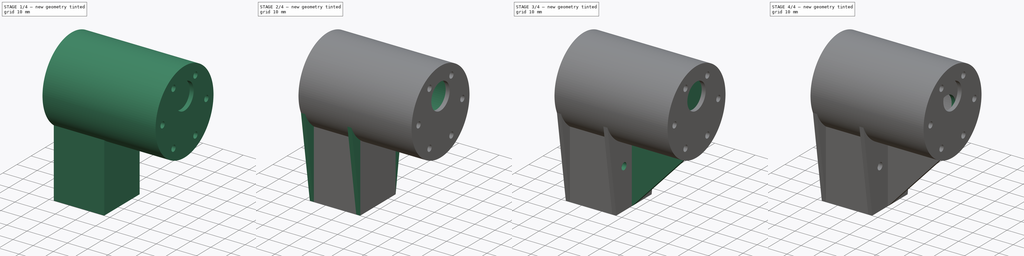
[diagram: build sequence overview — one tinted view per stage of 4, left to right]
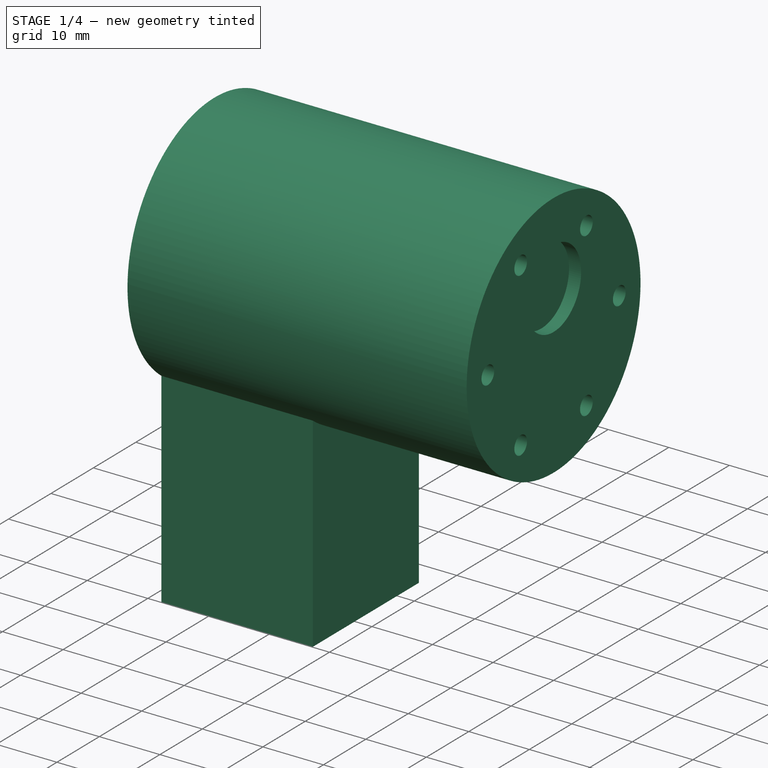
[diagram: stage 1 of 4 — iso view after this stage's code; geometry added in this stage tinted green]
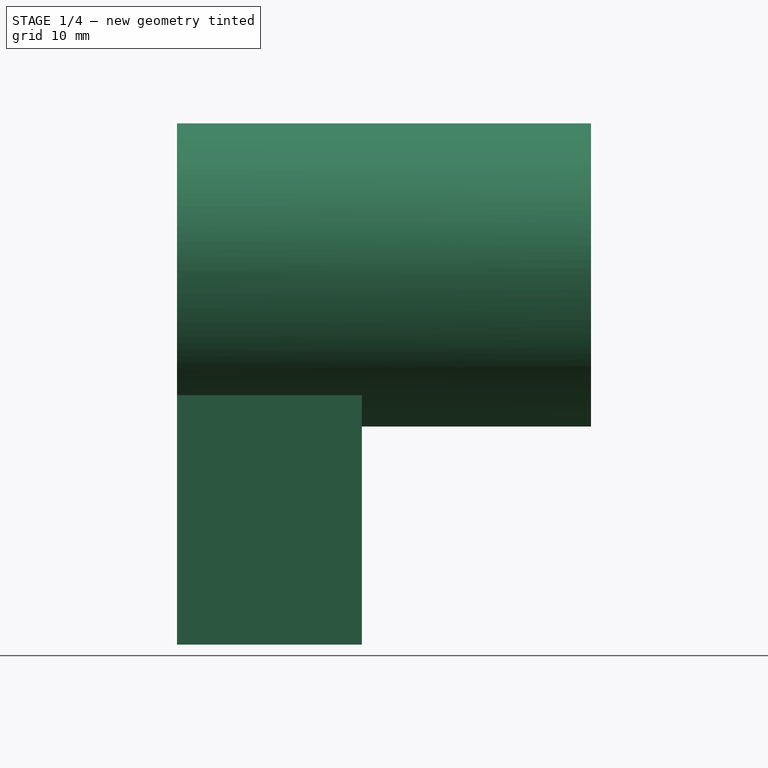
[diagram: stage 1 of 4 — front view after this stage's code; geometry added in this stage tinted green]
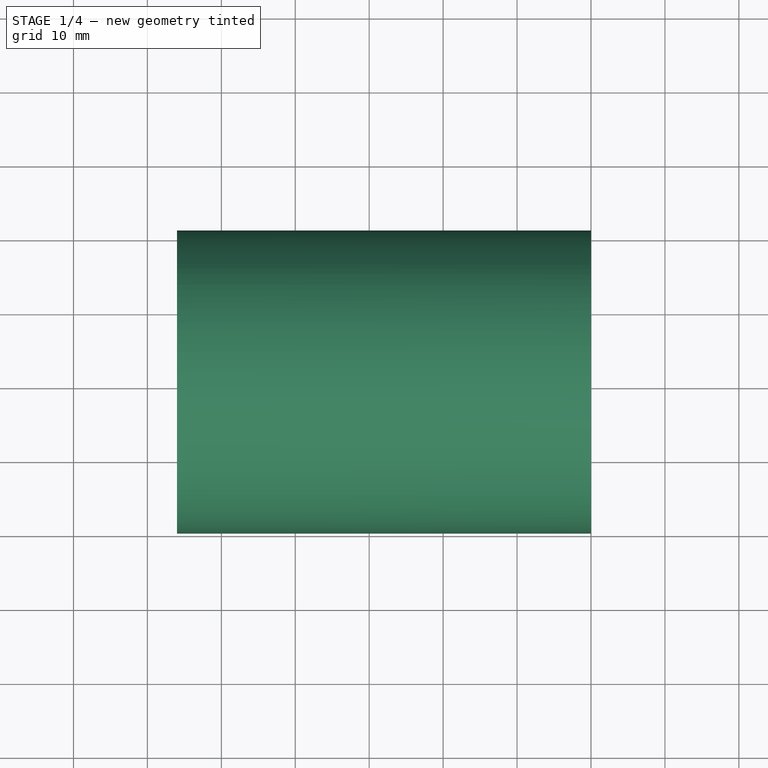
[diagram: stage 1 of 4 — top view after this stage's code; geometry added in this stage tinted green]
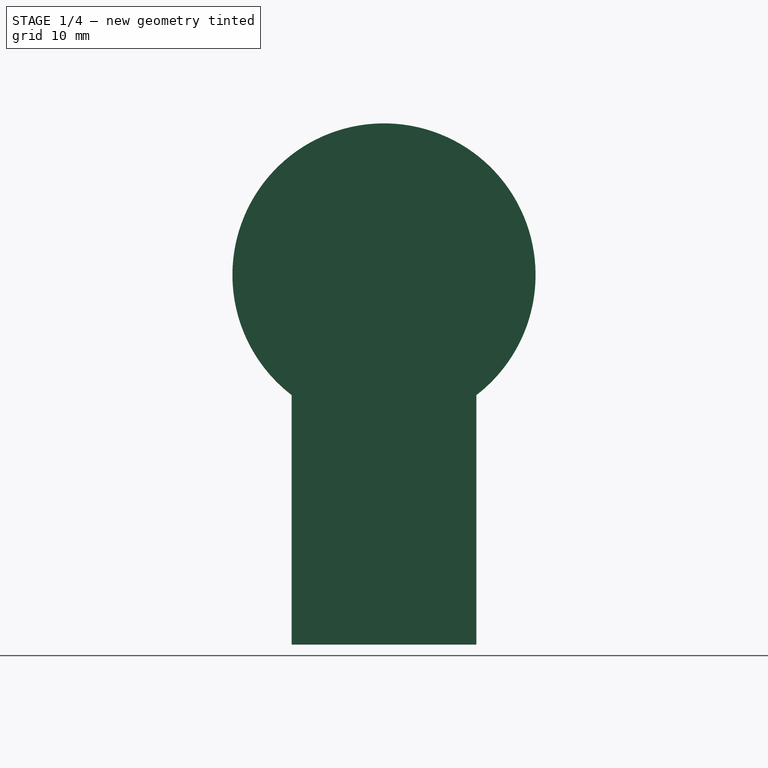
[diagram: stage 1 of 4 — right view after this stage's code; geometry added in this stage tinted green]
FCSTD DOCUMENT  (FreeCAD 0.19R24367 (Git))
Label: MotorBracket
License: All rights reserved
LicenseURL: http://en.wikipedia.org/wiki/All_rights_reserved
objects: Sketcher::SketchObject×12, PartDesign::Pocket×7, PartDesign::Pad×5, PartDesign::Body×2, PartDesign::LinearPattern×1, PartDesign::CoordinateSystem×1, App::Part×1
note: 40 computed .brp shape members not serialized (recipe doc carries the construction recipe); baked Part::Feature solids carry a one-line shape summary decoded from their .brp

FEATURE [PartDesign::Body] Body001  label="Back"
  Group = -> [Sketch009,Pad005,Sketch010,Pocket004,Sketch011,Pocket005,Sketch012,Pocket006]
  Origin = -> Origin001
  Tip = -> Pocket006
FEATURE [Sketcher::SketchObject] Sketch016
  FullyConstrained = true
  MapMode = 5
  Placement = pos=(-46,0,-1.5e-14) rot=(0.57735,0.57735,-0.57735;4.18879rad)
  sketch-geometry (4):
    g0: LineSegment StartX=20 StartY=0 StartZ=0 EndX=-20 EndY=0 EndZ=0
    g1: LineSegment StartX=12.5 StartY=50 StartZ=0 EndX=-12.5 EndY=50 EndZ=0
    g2: LineSegment StartX=20 StartY=0 StartZ=0 EndX=12.5 EndY=50 EndZ=0
    g3: LineSegment StartX=-12.5 StartY=50 StartZ=0 EndX=-20 EndY=0 EndZ=0
  constraints (10):
    c: PointOnObject(g0,g-1)
    c: Symmetric(g0,g0,g-2)
    c: Symmetric(g1,g1,g-2)
    c: Distance(g0) = 40
    c: Distance(g1) = 25
    c: DistanceY(g1,g-1) = -50
    c: Coincident(g2,g0)
    c: Coincident(g2,g1)
    c: Coincident(g3,g1)
    c: Coincident(g3,g0)
FEATURE [Sketcher::SketchObject] Sketch018
  FullyConstrained = true
  MapMode = 5
  Placement = pos=(0,0,0) rot=(0.57735,0.57735,0.57735;2.0944rad)
  Support = -> [YZ_Plane002]
  sketch-geometry (1):
    g0: Circle CenterX=0 CenterY=0 CenterZ=0 NormalX=0 NormalY=0 NormalZ=1 AngleXU=0 Radius=20.5
  constraints (2):
    c: Coincident(g0,g-1)
    c: Diameter(g0) = 41
FEATURE [PartDesign::Pad] Pad006
  Direction = (1,1,1)
  Length = 10
  Length2 = 46
  Placement = pos=(0,0,0) rot=(0.57735,0.57735,0.57735;2.0944rad)
  Profile = -> Sketch018
  Type = 4
FEATURE [Sketcher::SketchObject] Sketch017
  FullyConstrained = true
  MapMode = 5
  Placement = pos=(-46,1.01e-14,-1.01e-14) rot=(0.57735,0.57735,-0.57735;4.18879rad)
  Support = -> [Pad006]
  sketch-geometry (1):
    g0: Circle CenterX=0 CenterY=0 CenterZ=0 NormalX=0 NormalY=0 NormalZ=1 AngleXU=0 Radius=18.75
  constraints (2):
    c: Coincident(g0,g-1)
    c: Diameter(g0) = 37.5
FEATURE [Sketcher::SketchObject] Sketch019
  FullyConstrained = true
  MapMode = 5
  Placement = pos=(10,-4e-15,3e-15) rot=(0.57735,0.57735,0.57735;2.0944rad)
  sketch-geometry (13):
    g0: LineSegment StartX=-15.5 StartY=0 StartZ=0 EndX=15.5 EndY=0 EndZ=0
    g1: LineSegment StartX=0 StartY=0 StartZ=0 EndX=0 EndY=7 EndZ=0
    g2: LineSegment StartX=-7.75 StartY=-13.4234 StartZ=0 EndX=7.75 EndY=-13.4234 EndZ=0
    g3: LineSegment StartX=-7.75 StartY=-13.4234 StartZ=0 EndX=0 EndY=0 EndZ=0
    g4: LineSegment StartX=-7.75 StartY=13.4234 StartZ=0 EndX=7.75 EndY=13.4234 EndZ=0
    g5: LineSegment StartX=-7.75 StartY=13.4234 StartZ=0 EndX=0 EndY=0 EndZ=0
    g6: Circle CenterX=0 CenterY=7 CenterZ=0 NormalX=0 NormalY=0 NormalZ=1 AngleXU=0 Radius=6.5
    g7: Circle CenterX=7.75 CenterY=-13.4234 CenterZ=0 NormalX=0 NormalY=0 NormalZ=1 AngleXU=0 Radius=1.5
    g8: Circle CenterX=15.5 CenterY=0 CenterZ=0 NormalX=0 NormalY=0 NormalZ=1 AngleXU=0 Radius=1.5
    g9: Circle CenterX=-15.5 CenterY=0 CenterZ=0 NormalX=0 NormalY=0 NormalZ=1 AngleXU=0 Radius=1.5
    g10: Circle CenterX=-7.75 CenterY=-13.4234 CenterZ=0 NormalX=0 NormalY=0 NormalZ=1 AngleXU=0 Radius=1.5
    g11: Circle CenterX=7.75 CenterY=13.4234 CenterZ=0 NormalX=0 NormalY=0 NormalZ=1 AngleXU=0 Radius=1.5
    g12: Circle CenterX=-7.75 CenterY=13.4234 CenterZ=0 NormalX=0 NormalY=0 NormalZ=1 AngleXU=0 Radius=1.5
  constraints (30):
    c: PointOnObject(g0,g-1)
    c: Symmetric(g0,g0,g-2)
    c: Distance(g0) = 31
    c: Coincident(g1,g-1)
    c: PointOnObject(g1,g-2)
    c: Distance(g1) = 7
    c: Distance(g2) = 15.5
    c: Coincident(g3,g2)
    c: Coincident(g3,g-1)
    c: Distance(g3) = 15.5
    c: Distance(g4) = 15.5
    c: Coincident(g5,g4)
    c: Coincident(g5,g-1)
    c: Distance(g5) = 15.5
    c: Coincident(g6,g1)
    c: Diameter(g6) = 13
    c: Symmetric(g2,g2,g-2)
    c: Symmetric(g4,g4,g-2)
    c: Coincident(g7,g2)
    c: Diameter(g7) = 3
    c: Coincident(g8,g0)
    c: Coincident(g9,g0)
    c: Coincident(g10,g2)
    c: Coincident(g12,g4)
    c: Coincident(g11,g4)
    c: Diameter(g12) = 3
    c: Diameter(g11) = 3
    c: Diameter(g9) = 3
    c: Diameter(g8) = 3
    c: Diameter(g10) = 3
FEATURE [PartDesign::Pocket] Pocket007
  BaseFeature = -> Pad006
  Length = 2
  Length2 = 100
  Placement = pos=(0,0,0) rot=(0.57735,0.57735,0.57735;2.0944rad)
  Profile = -> Sketch019
  Type = 0
FEATURE [Sketcher::SketchObject] Sketch013
  ExternalGeometry = -> [Pocket007]
  FullyConstrained = true
  MapMode = 5
  Support = -> [XY_Plane002]
  sketch-geometry (4):
    g0: LineSegment StartX=-46 StartY=12.5 StartZ=0 EndX=-21 EndY=12.5 EndZ=0
    g1: LineSegment StartX=-21 StartY=12.5 StartZ=0 EndX=-21 EndY=-12.5 EndZ=0
    g2: LineSegment StartX=-21 StartY=-12.5 StartZ=0 EndX=-46 EndY=-12.5 EndZ=0
    g3: LineSegment StartX=-46 StartY=-12.5 StartZ=0 EndX=-46 EndY=12.5 EndZ=0
  constraints (11):
    c: Coincident(g0,g1)
    c: Coincident(g1,g2)
    c: Coincident(g2,g3)
    c: Coincident(g3,g0)
    c: Horizontal(g0)
    c: Horizontal(g2)
    c: Vertical(g3)
    c: Distance(g0) = 25
    c: Equal(g0,g1)
    c: Symmetric(g0,g1,g-1)
    c: DistanceX(g-3,g0) = 0
FEATURE [Sketcher::SketchObject] Sketch020
  FullyConstrained = true
  MapMode = 5
  Placement = pos=(-46,1e-14,-2.5e-14) rot=(0.57735,0.57735,-0.57735;4.18879rad)
  sketch-geometry (2):
    g0: Circle CenterX=-7 CenterY=30 CenterZ=0 NormalX=0 NormalY=0 NormalZ=1 AngleXU=0 Radius=1.75
    g1: Circle CenterX=7 CenterY=30 CenterZ=0 NormalX=0 NormalY=0 NormalZ=1 AngleXU=0 Radius=1.75
  constraints (5):
    c: Diameter(g0) = 3.5
    c: Diameter(g1) = 3.5
    c: Symmetric(g0,g1,g-2)
    c: DistanceX(g0,g-1) = 7
    c: DistanceY(g-1,g0) = 30
FEATURE [PartDesign::Pad] Pad009
  BaseFeature = -> Pocket007
  Direction = (1,1,1)
  Length = 50
  Length2 = 100
  Placement = pos=(0,0,0) rot=(0.57735,0.57735,0.57735;2.0944rad)
  Profile = -> Sketch013
  Reversed = true
  Type = 0
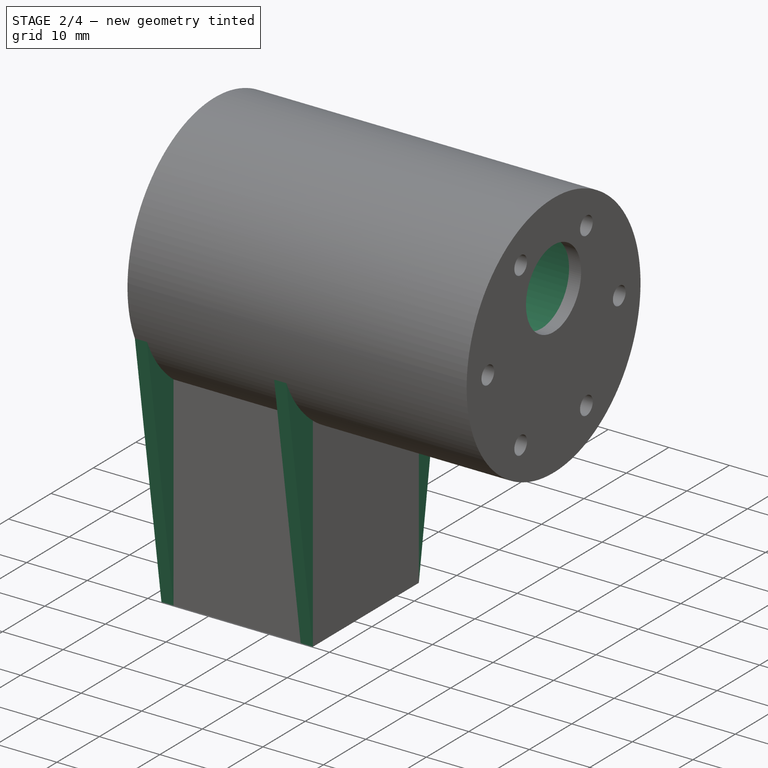
[diagram: stage 2 of 4 — iso view after this stage's code; geometry added in this stage tinted green]
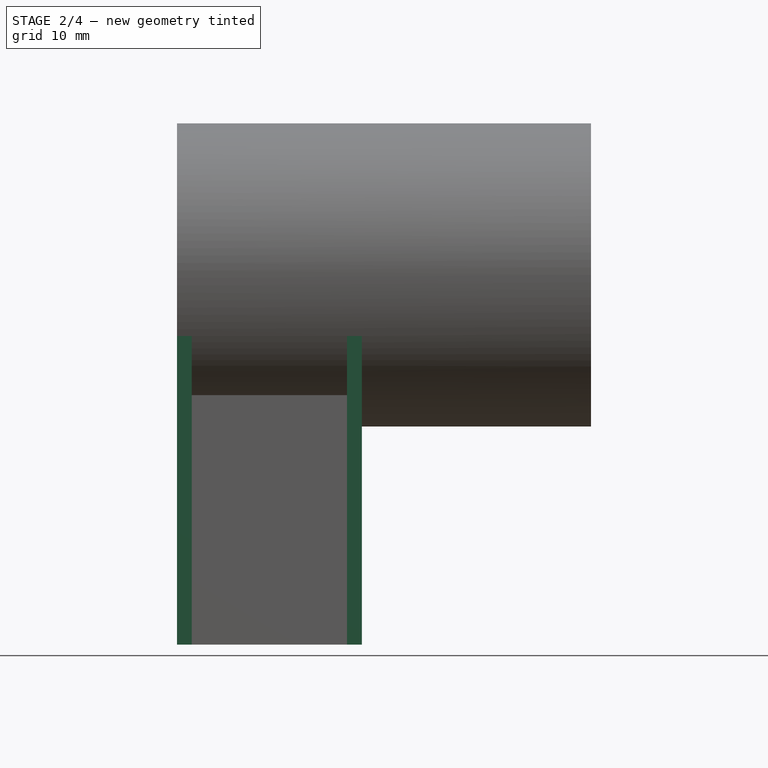
[diagram: stage 2 of 4 — front view after this stage's code; geometry added in this stage tinted green]
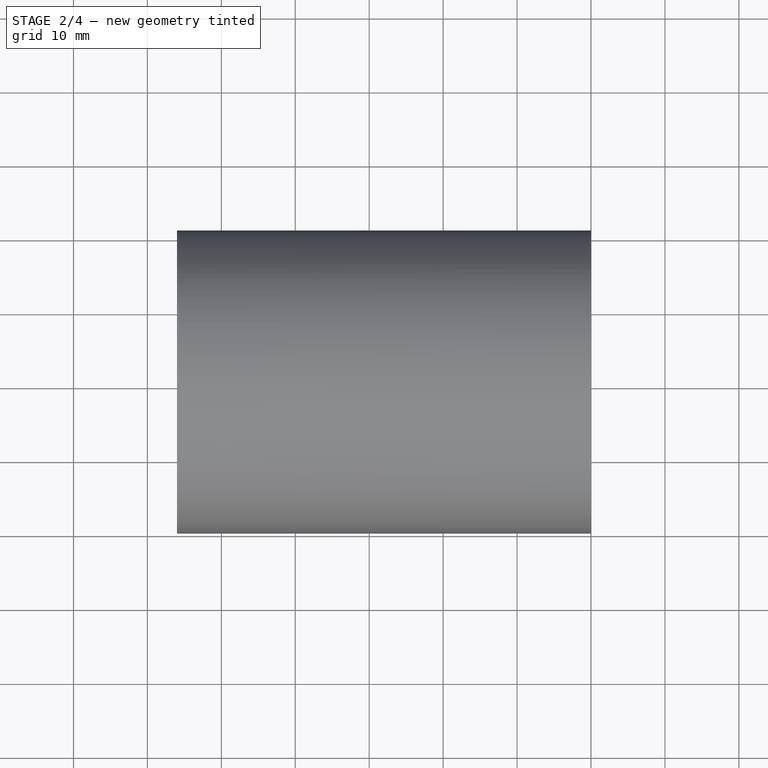
[diagram: stage 2 of 4 — top view after this stage's code; geometry added in this stage tinted green]
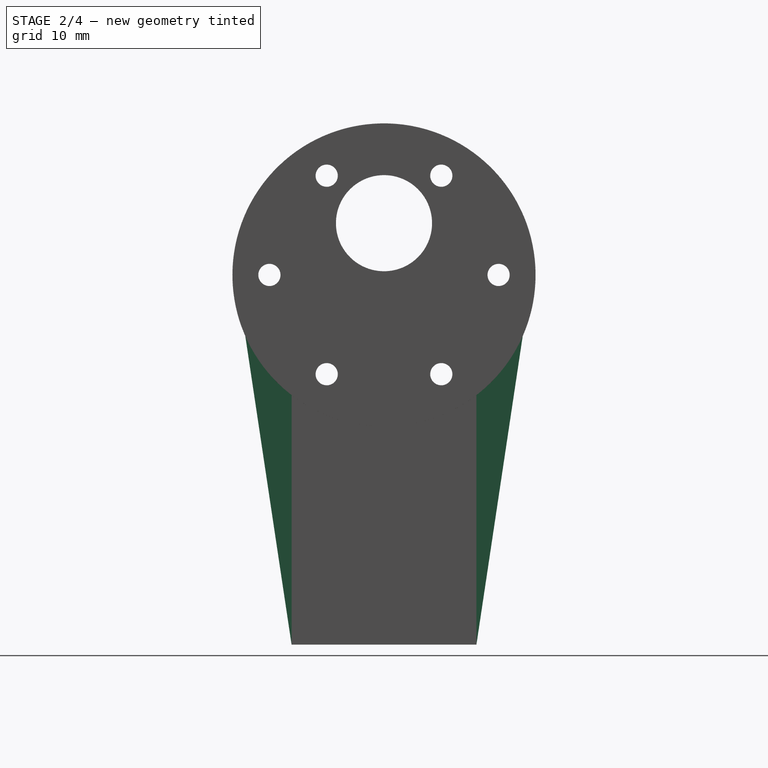
[diagram: stage 2 of 4 — right view after this stage's code; geometry added in this stage tinted green]
FEATURE [PartDesign::Pad] Pad008
  BaseFeature = -> Pad009
  Direction = (1,1,1)
  Length = 2
  Length2 = 100
  Placement = pos=(0,0,0) rot=(0.57735,0.57735,0.57735;2.0944rad)
  Profile = -> Sketch016
  Reversed = true
  Type = 0
FEATURE [PartDesign::LinearPattern] LinearPattern001
  BaseFeature = -> Pad008
  Direction = -> X_Axis002
  Length = 23
  Occurrences = 2
  Originals = -> [Pad008]
  Placement = pos=(0,0,0) rot=(0.57735,0.57735,0.57735;2.0944rad)
FEATURE [PartDesign::Pocket] Pocket008
  BaseFeature = -> LinearPattern001
  Length = 54
  Length2 = 100
  Placement = pos=(0,0,0) rot=(0.57735,0.57735,0.57735;2.0944rad)
  Profile = -> Sketch017
  Type = 0
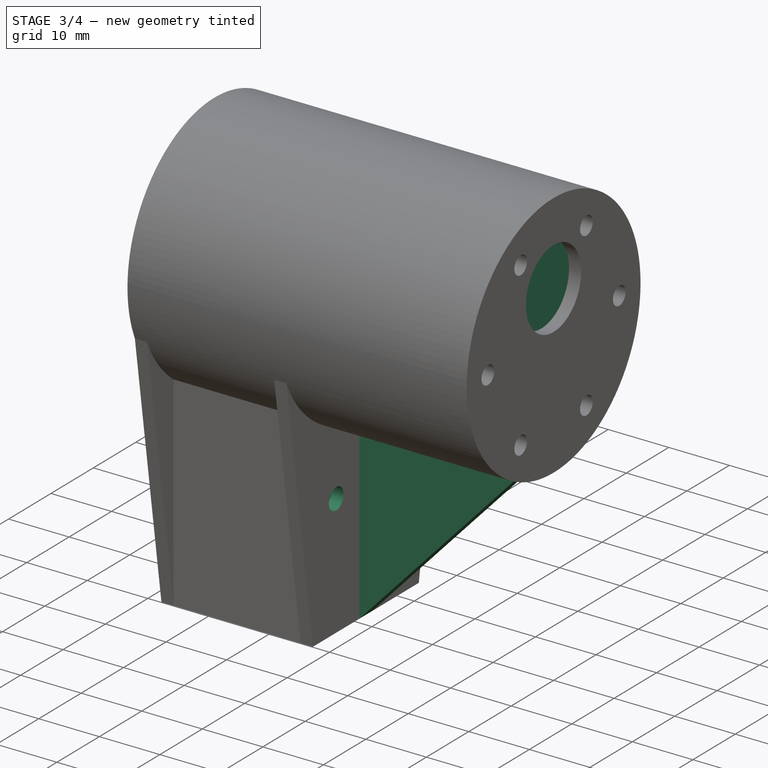
[diagram: stage 3 of 4 — iso view after this stage's code; geometry added in this stage tinted green]
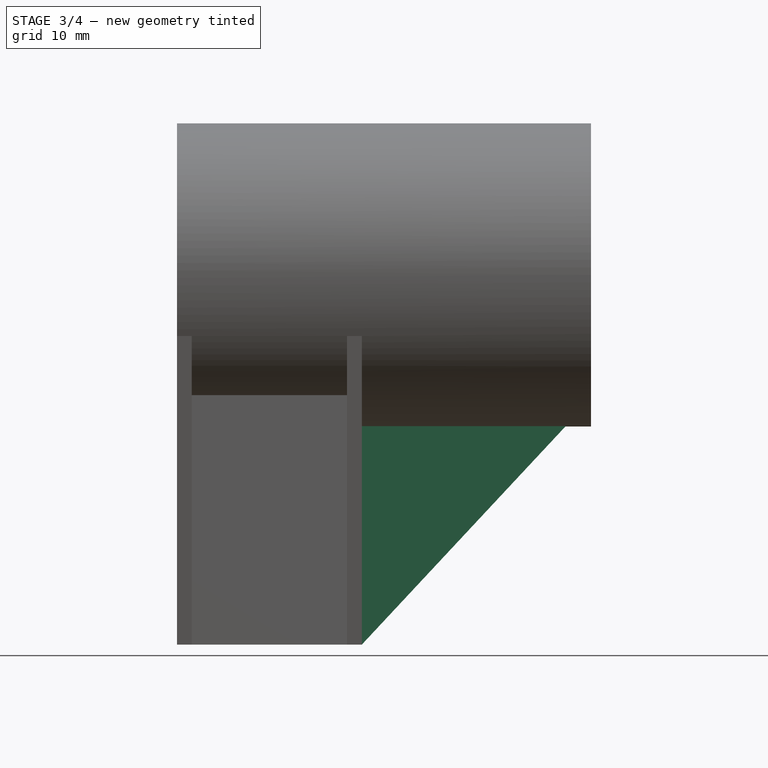
[diagram: stage 3 of 4 — front view after this stage's code; geometry added in this stage tinted green]
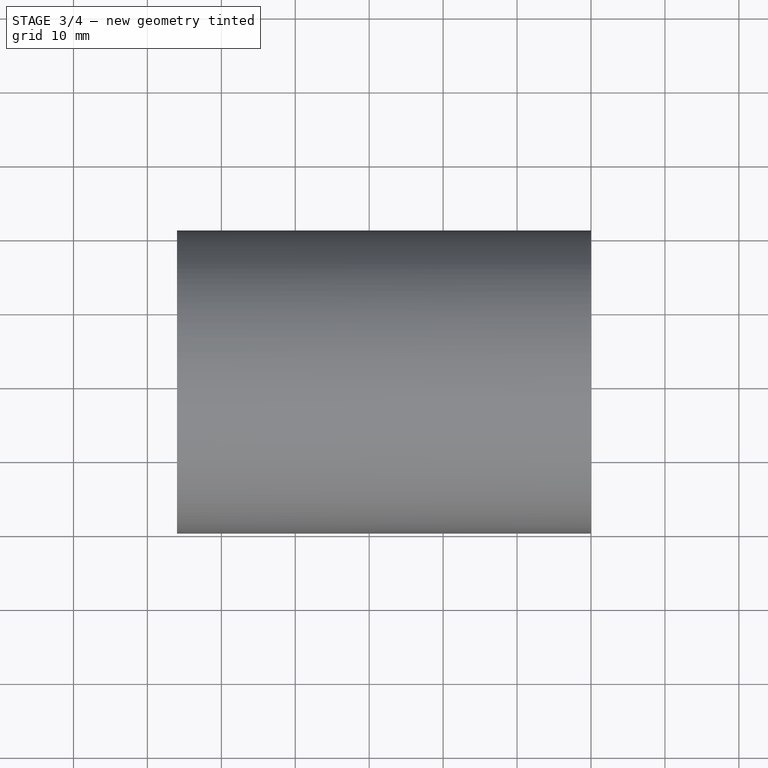
[diagram: stage 3 of 4 — top view after this stage's code; geometry added in this stage tinted green]
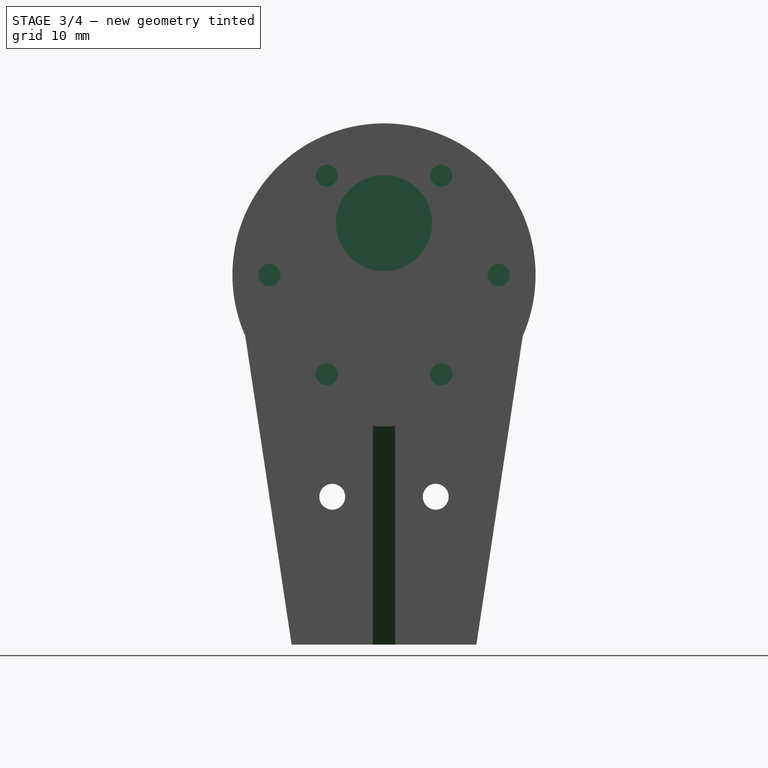
[diagram: stage 3 of 4 — right view after this stage's code; geometry added in this stage tinted green]
FEATURE [Sketcher::SketchObject] Sketch009
  FullyConstrained = true
  MapMode = 5
  Placement = pos=(0,0,0) rot=(0.57735,0.57735,0.57735;2.0944rad)
  Support = -> [YZ_Plane001]
  sketch-geometry (1):
    g0: Circle CenterX=0 CenterY=0 CenterZ=0 NormalX=0 NormalY=0 NormalZ=1 AngleXU=0 Radius=20
  constraints (2):
    c: Coincident(g0,g-1)
    c: Diameter(g0) = 40
FEATURE [PartDesign::Pad] Pad005
  Direction = (1,1,1)
  Length = 7
  Length2 = 100
  Placement = pos=(0,0,0) rot=(0.57735,0.57735,0.57735;2.0944rad)
  Profile = -> Sketch009
  Type = 0
FEATURE [PartDesign::Pocket] Pocket010
  BaseFeature = -> Pocket008
  Length = 5
  Length2 = 100
  Placement = pos=(0,0,0) rot=(0.57735,0.57735,0.57735;2.0944rad)
  Profile = -> Sketch020
  Refine = true
  Type = 1
FEATURE [Sketcher::SketchObject] Sketch021
  ExternalGeometry = -> [Pocket010]
  FullyConstrained = true
  MapMode = 5
  Placement = pos=(0,0,0) rot=(1,0,0;1.5708rad)
  Support = -> [XZ_Plane002]
  sketch-geometry (3):
    g0: LineSegment StartX=7 StartY=-20 StartZ=0 EndX=-21 EndY=-20 EndZ=0
    g1: LineSegment StartX=-21 StartY=-20 StartZ=0 EndX=-21 EndY=-50 EndZ=0
    g2: LineSegment StartX=-21 StartY=-50 StartZ=0 EndX=7 EndY=-20 EndZ=0
  constraints (8):
    c: Horizontal(g0)
    c: Coincident(g1,g0)
    c: Vertical(g1)
    c: Coincident(g2,g1)
    c: Coincident(g2,g0)
    c: Distance(g0) = 28
    c: Distance(g1) = 30
    c: Coincident(g1,g-3)
FEATURE [PartDesign::Pad] Pad010
  BaseFeature = -> Pocket010
  Direction = (1,1,1)
  Length = 3
  Length2 = 100
  Midplane = true
  Placement = pos=(0,0,0) rot=(0.57735,0.57735,0.57735;2.0944rad)
  Profile = -> Sketch021
  Type = 0
FEATURE [Sketcher::SketchObject] Sketch022
  ExternalGeometry = -> [Pad010]
  FullyConstrained = true
  MapMode = 5
  Placement = pos=(0,0,-50) rot=(0.707107,0.707107,0;3.14159rad)
  Support = -> [Pad010]
  sketch-geometry (4):
    g0: LineSegment StartX=-10.5 StartY=-23 StartZ=0 EndX=10.5 EndY=-23 EndZ=0
    g1: LineSegment StartX=10.5 StartY=-23 StartZ=0 EndX=10.5 EndY=-44 EndZ=0
    g2: LineSegment StartX=10.5 StartY=-44 StartZ=0 EndX=-10.5 EndY=-44 EndZ=0
    g3: LineSegment StartX=-10.5 StartY=-44 StartZ=0 EndX=-10.5 EndY=-23 EndZ=0
  constraints (11):
    c: Coincident(g0,g1)
    c: Coincident(g1,g2)
    c: Coincident(g2,g3)
    c: Coincident(g3,g0)
    c: Horizontal(g2)
    c: Vertical(g1)
    c: Vertical(g3)
    c: Symmetric(g0,g0,g-2)
    c: Equal(g0,g1)
    c: Distance(g0) = 21
    c: DistanceY(g0,g-3) = 2
FEATURE [PartDesign::Pocket] Pocket011
  BaseFeature = -> Pad010
  Length = 29
  Length2 = 100
  Placement = pos=(0,0,0) rot=(0.57735,0.57735,0.57735;2.0944rad)
  Profile = -> Sketch022
  Type = 0
FEATURE [PartDesign::Body] Body002  label="Body"
  Group = -> [Sketch018,Sketch019,Pad006,Sketch017,Pocket007,Sketch013,Pad009,Sketch016,Pad008,LinearPattern001,Pocket008,Sketch020,Pocket010,Sketch021,Pad010,Sketch022,Pocket011]
  Origin = -> Origin002
  Tip = -> Pocket011
FEATURE [PartDesign::CoordinateSystem] LCS_1
  AttacherType = Attacher::AttachEngine3D
  MapMode = 5
  Placement = pos=(8,-3e-15,1.8e-15) rot=(0.57735,-0.57735,0.57735;4.18879rad)
  Support = -> [Pocket011]
FEATURE [App::Part] Front
  Group = -> [Body002,LCS_1]
  Origin = -> Origin
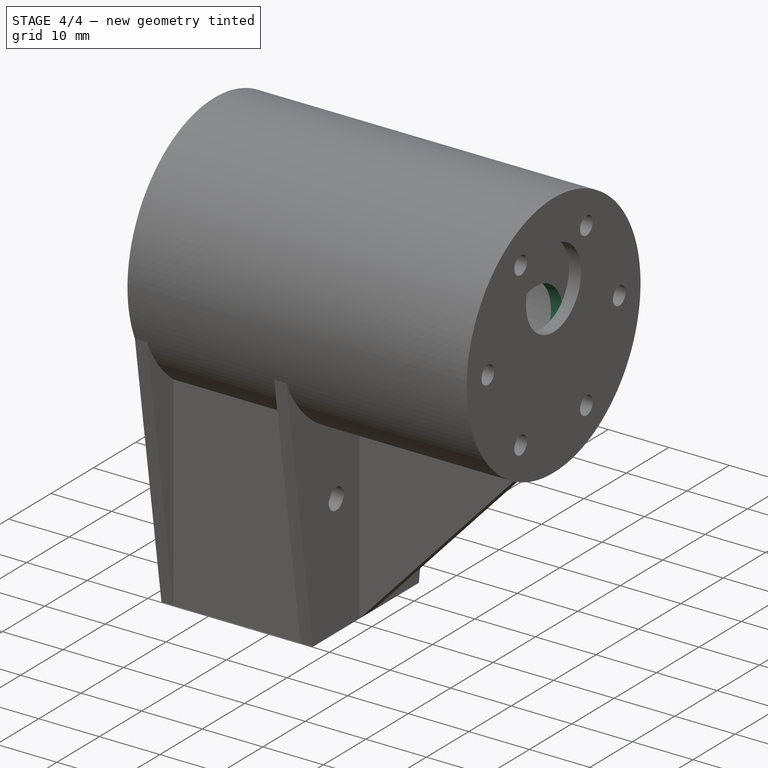
[diagram: stage 4 of 4 — iso view after this stage's code; geometry added in this stage tinted green]
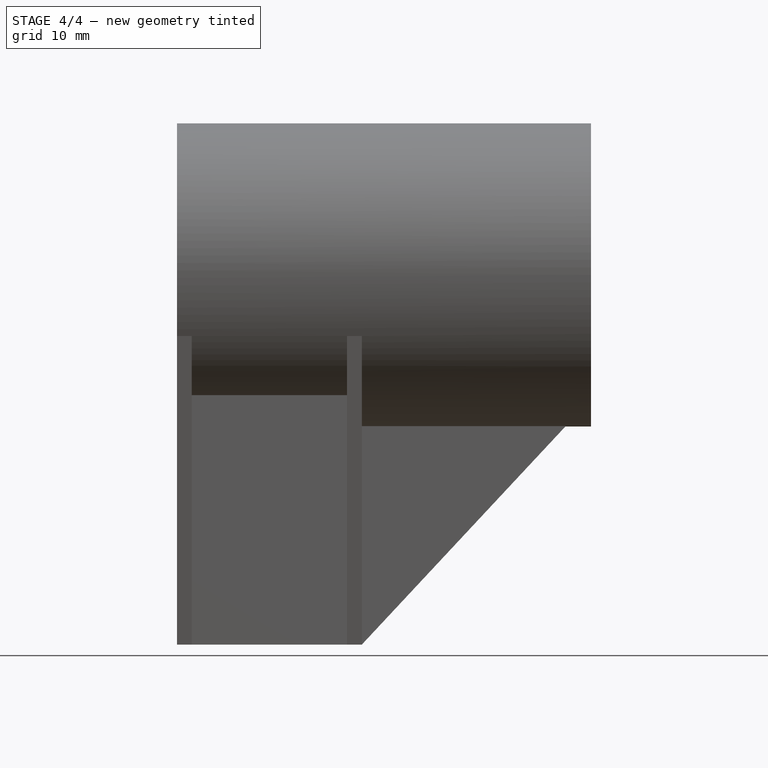
[diagram: stage 4 of 4 — front view after this stage's code; geometry added in this stage tinted green]
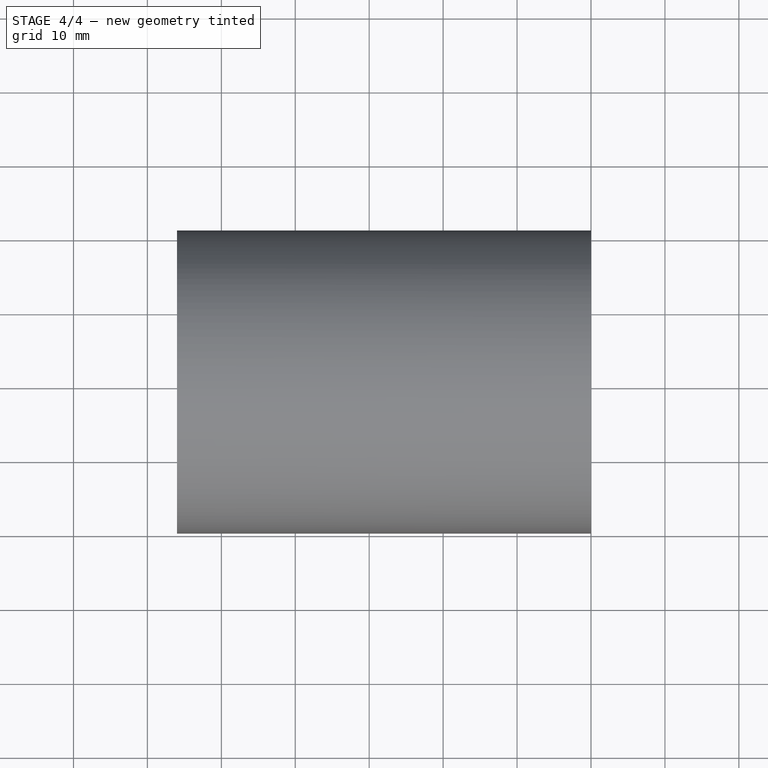
[diagram: stage 4 of 4 — top view after this stage's code; geometry added in this stage tinted green]
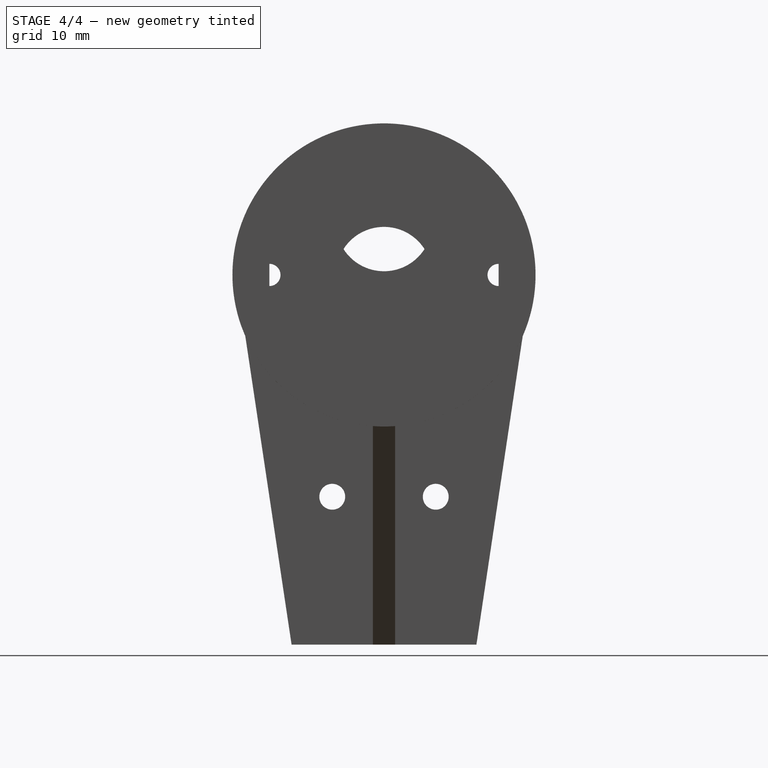
[diagram: stage 4 of 4 — right view after this stage's code; geometry added in this stage tinted green]
FEATURE [Sketcher::SketchObject] Sketch010
  FullyConstrained = true
  MapMode = 5
  Placement = pos=(0,0,0) rot=(0.57735,0.57735,-0.57735;4.18879rad)
  Support = -> [Pad005]
  sketch-geometry (1):
    g0: Circle CenterX=0 CenterY=0 CenterZ=0 NormalX=0 NormalY=0 NormalZ=1 AngleXU=0 Radius=18.15
  constraints (2):
    c: Coincident(g0,g-1)
    c: Diameter(g0) = 36.3
FEATURE [PartDesign::Pocket] Pocket004
  BaseFeature = -> Pad005
  Length = 5
  Length2 = 100
  Placement = pos=(0,0,0) rot=(0.57735,0.57735,0.57735;2.0944rad)
  Profile = -> Sketch010
  Type = 0
FEATURE [Sketcher::SketchObject] Sketch011
  FullyConstrained = true
  MapMode = 5
  Placement = pos=(5,-1.1e-15,1.1e-15) rot=(0.57735,0.57735,-0.57735;4.18879rad)
  Support = -> [Pocket004]
  sketch-geometry (1):
    g0: Circle CenterX=0 CenterY=0 CenterZ=0 NormalX=0 NormalY=0 NormalZ=1 AngleXU=0 Radius=6.5
  constraints (2):
    c: Coincident(g0,g-1)
    c: Diameter(g0) = 13
FEATURE [PartDesign::Pocket] Pocket005
  BaseFeature = -> Pocket004
  Length = 5
  Length2 = 100
  Placement = pos=(0,0,0) rot=(0.57735,0.57735,0.57735;2.0944rad)
  Profile = -> Sketch011
  Type = 1
FEATURE [Sketcher::SketchObject] Sketch012
  FullyConstrained = true
  MapMode = 5
  Placement = pos=(7,-1.5e-15,1.5e-15) rot=(0.57735,0.57735,0.57735;2.0944rad)
  Support = -> [Pocket005]
  sketch-geometry (9):
    g0: LineSegment StartX=-14.5 StartY=0 StartZ=0 EndX=14.5 EndY=0 EndZ=0
    g1: LineSegment StartX=-15.5 StartY=3 StartZ=0 EndX=-13.5 EndY=3 EndZ=0
    g2: LineSegment StartX=-13.5 StartY=3 StartZ=0 EndX=-13.5 EndY=-3 EndZ=0
    g3: LineSegment StartX=-13.5 StartY=-3 StartZ=0 EndX=-15.5 EndY=-3 EndZ=0
    g4: LineSegment StartX=-15.5 StartY=-3 StartZ=0 EndX=-15.5 EndY=3 EndZ=0
    g5: LineSegment StartX=13.5 StartY=3 StartZ=0 EndX=15.5 EndY=3 EndZ=0
    g6: LineSegment StartX=15.5 StartY=3 StartZ=0 EndX=15.5 EndY=-3 EndZ=0
    g7: LineSegment StartX=15.5 StartY=-3 StartZ=0 EndX=13.5 EndY=-3 EndZ=0
    g8: LineSegment StartX=13.5 StartY=-3 StartZ=0 EndX=13.5 EndY=3 EndZ=0
  constraints (25):
    c: PointOnObject(g0,g-1)
    c: Symmetric(g0,g0,g-2)
    c: Distance(g0) = 29
    c: Coincident(g1,g2)
    c: Coincident(g2,g3)
    c: Coincident(g3,g4)
    c: Coincident(g4,g1)
    c: Horizontal(g1)
    c: Horizontal(g3)
    c: Vertical(g4)
    c: Symmetric(g1,g2,g0)
    c: Distance(g2) = 6
    c: Distance(g1) = 2
    c: DistanceX(g1,g0) = 1
    c: Coincident(g5,g6)
    c: Coincident(g6,g7)
    c: Coincident(g7,g8)
    c: Coincident(g8,g5)
    c: Horizontal(g5)
    c: Horizontal(g7)
    c: Vertical(g6)
    c: Symmetric(g5,g7,g0)
    c: Distance(g6) = 6
    c: Distance(g5) = 2
    c: DistanceX(g5,g0) = 1
FEATURE [PartDesign::Pocket] Pocket006
  BaseFeature = -> Pocket005
  Length = 5
  Length2 = 100
  Placement = pos=(0,0,0) rot=(0.57735,0.57735,0.57735;2.0944rad)
  Profile = -> Sketch012
  Type = 1
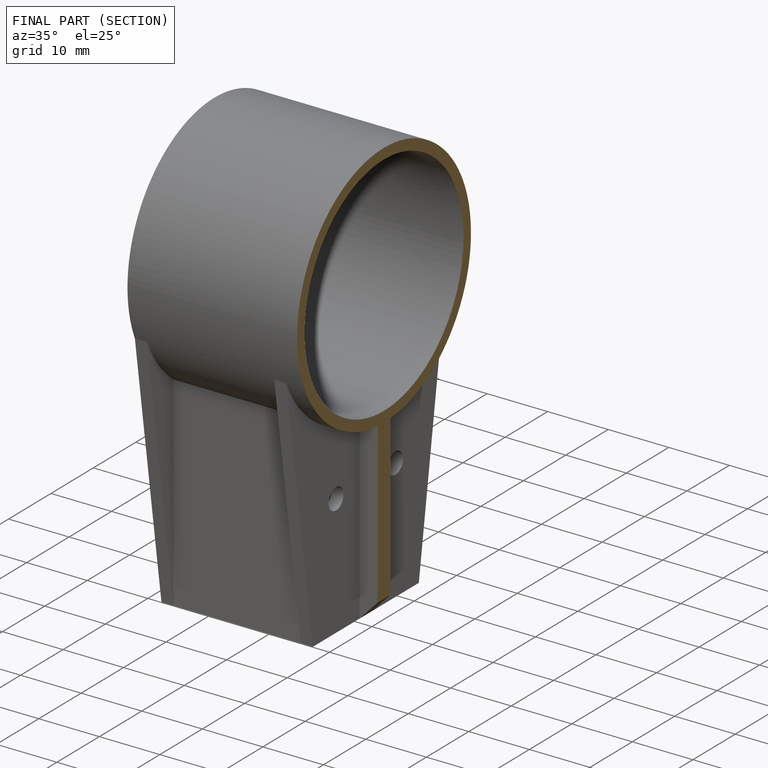
[diagram: finished part — half-section view (interior)]
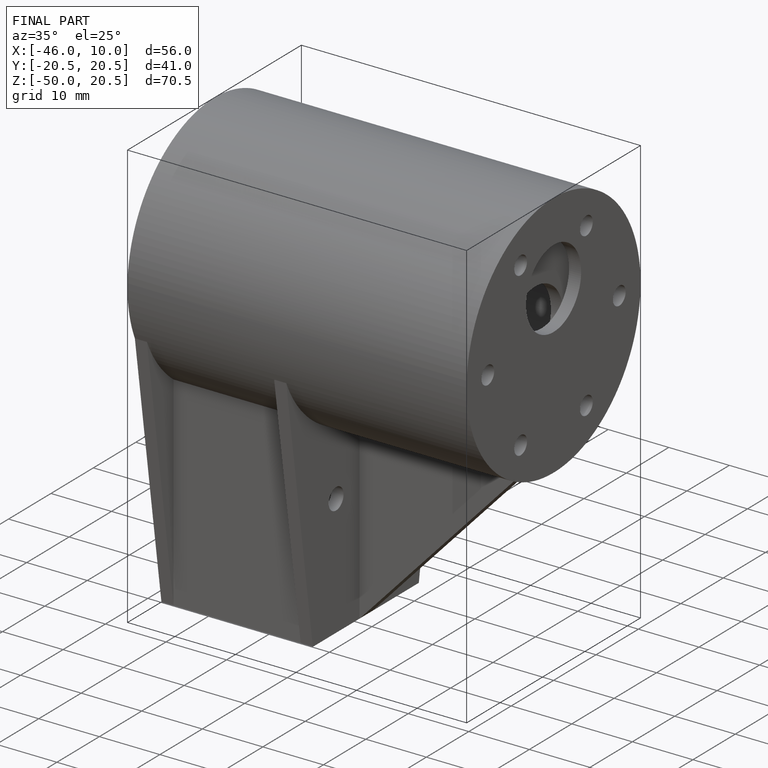
[diagram: finished part — iso view with bounding-box wireframe]
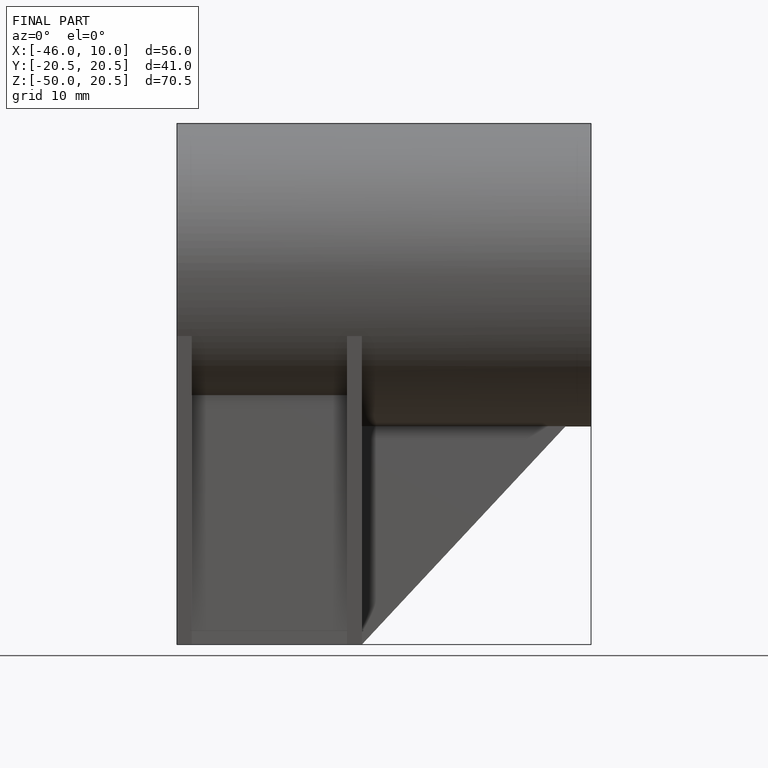
[diagram: finished part — front view with bounding-box wireframe]
